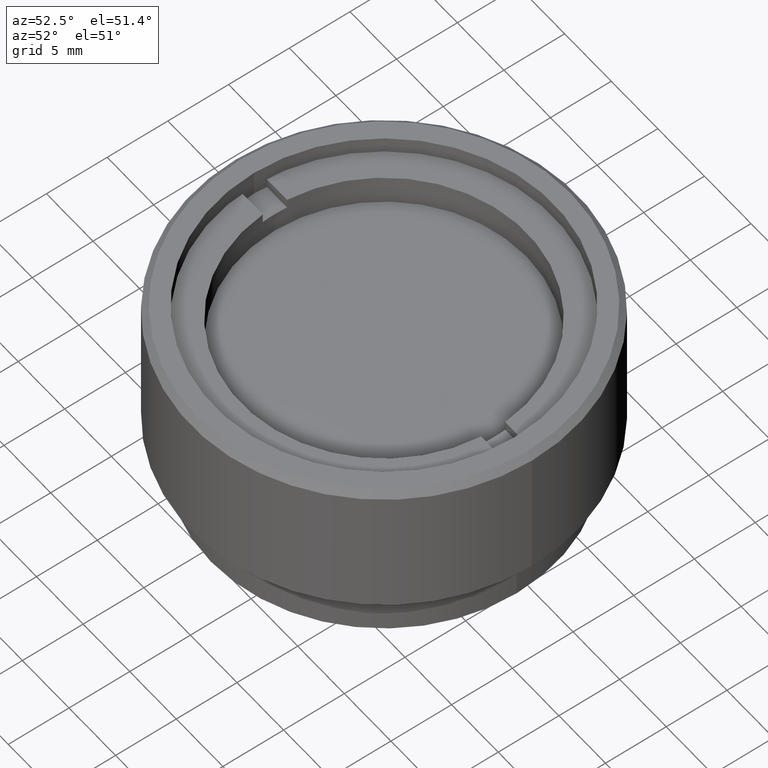
[diagram: clean part render]
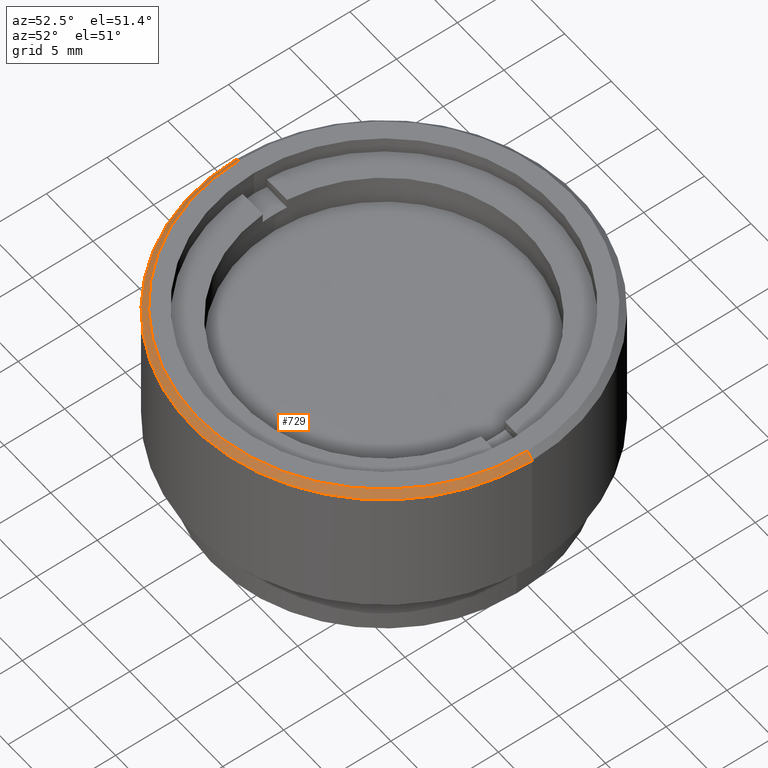
[diagram: same view with one face highlighted and labeled with its STEP entity id]
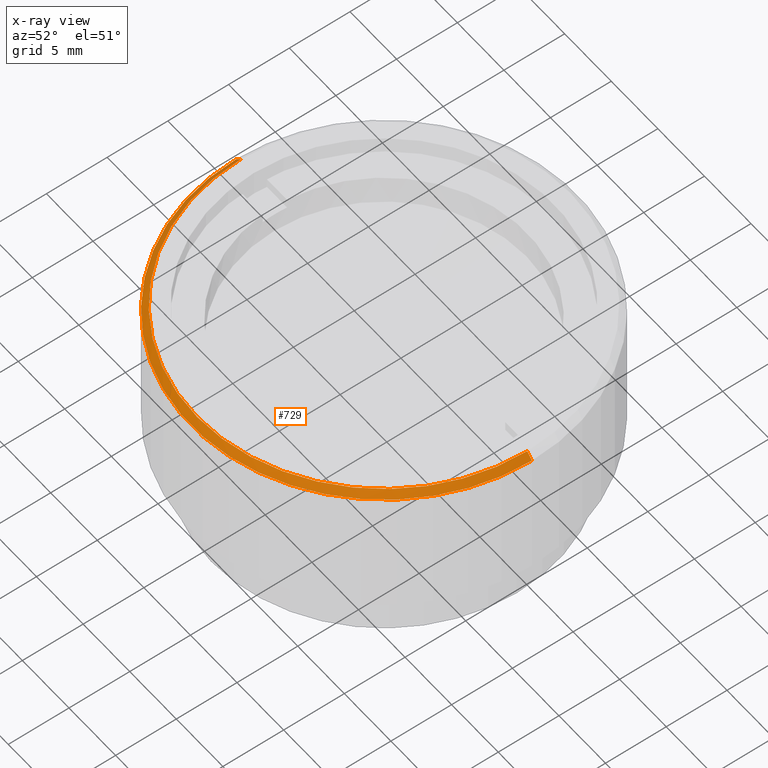
[diagram: x-ray of the same camera — body ghosted, the highlighted face saturated]
A machine part, auxiliary view. The second image highlights one B-rep face of the part: STEP entity #729.
The next image is the same camera in x-ray: the body ghosted, the highlighted face saturated — about 0% of this face is hidden behind the body in this view.
In plain terms, the highlighted conical surface has half-angle 45 deg.
Its self-contained STEP definition (entity closure, byte-faithful):
#64 = DIRECTION ( 'NONE',  ( 1.000000000000000000, 0.000000000000000000, 0.000000000000000000 ) ) ;
#80 = CARTESIAN_POINT ( 'NONE',  ( 15.87800000000000011, 1.944494187686167431E-15, 15.99999999999999645 ) ) ;
#144 = CARTESIAN_POINT ( 'NONE',  ( 0.000000000000000000, 0.000000000000000000, 16.50000000000000000 ) ) ;
#190 = EDGE_CURVE ( 'NONE', #1242, #274, #738, .T. ) ;
#239 = AXIS2_PLACEMENT_3D ( 'NONE', #662, #1177, #1622 ) ;
#249 = ORIENTED_EDGE ( 'NONE', *, *, #1009, .T. ) ;
#251 = CIRCLE ( 'NONE', #239, 15.37800000000000367 ) ;
#274 = VERTEX_POINT ( 'NONE', #334 ) ;
#323 = CARTESIAN_POINT ( 'NONE',  ( -15.37800000000000367, 0.000000000000000000, 16.50000000000000000 ) ) ;
#334 = CARTESIAN_POINT ( 'NONE',  ( -15.87800000000000011, 0.000000000000000000, 15.99999999999999645 ) ) ;
#372 = AXIS2_PLACEMENT_3D ( 'NONE', #980, #974, #64 ) ;
#395 = DIRECTION ( 'NONE',  ( 0.000000000000000000, 0.000000000000000000, -1.000000000000000000 ) ) ;
#463 = ORIENTED_EDGE ( 'NONE', *, *, #190, .F. ) ;
#464 = DIRECTION ( 'NONE',  ( -0.7071067811865425767, 0.000000000000000000, -0.7071067811865525687 ) ) ;
#540 = DIRECTION ( 'NONE',  ( -1.000000000000000000, 0.000000000000000000, 0.000000000000000000 ) ) ;
#662 = CARTESIAN_POINT ( 'NONE',  ( 0.000000000000000000, 0.000000000000000000, 16.50000000000000000 ) ) ;
#729 = ADVANCED_FACE ( 'NONE', ( #810 ), #1088, .T. ) ;
#732 = CARTESIAN_POINT ( 'NONE',  ( 15.37800000000000367, 1.913878017707484038E-15, 16.50000000000000000 ) ) ;
#738 = CIRCLE ( 'NONE', #372, 15.87800000000000011 ) ;
#810 = FACE_OUTER_BOUND ( 'NONE', #878, .T. ) ;
#875 = LINE ( 'NONE', #323, #1600 ) ;
#878 = EDGE_LOOP ( 'NONE', ( #1198, #1104, #249, #463 ) ) ;
#974 = DIRECTION ( 'NONE',  ( 0.000000000000000000, 0.000000000000000000, -1.000000000000000000 ) ) ;
#980 = CARTESIAN_POINT ( 'NONE',  ( 0.000000000000000000, 0.000000000000000000, 15.99999999999999645 ) ) ;
#1009 = EDGE_CURVE ( 'NONE', #1681, #274, #875, .T. ) ;
#1088 = CONICAL_SURFACE ( 'NONE', #1149, 15.37800000000000367, 0.7853981633974412846 ) ;
#1098 = LINE ( 'NONE', #1236, #1370 ) ;
#1104 = ORIENTED_EDGE ( 'NONE', *, *, #1128, .F. ) ;
#1128 = EDGE_CURVE ( 'NONE', #1681, #1473, #251, .T. ) ;
#1149 = AXIS2_PLACEMENT_3D ( 'NONE', #144, #395, #540 ) ;
#1177 = DIRECTION ( 'NONE',  ( 0.000000000000000000, 0.000000000000000000, 1.000000000000000000 ) ) ;
#1198 = ORIENTED_EDGE ( 'NONE', *, *, #1395, .F. ) ;
#1236 = CARTESIAN_POINT ( 'NONE',  ( 15.37800000000000367, 1.883261847728800251E-15, 16.50000000000000000 ) ) ;
#1242 = VERTEX_POINT ( 'NONE', #80 ) ;
#1318 = CARTESIAN_POINT ( 'NONE',  ( -15.37800000000000367, 0.000000000000000000, 16.50000000000000000 ) ) ;
#1359 = DIRECTION ( 'NONE',  ( 0.7071067811865425767, 8.659560562354873694E-17, -0.7071067811865525687 ) ) ;
#1370 = VECTOR ( 'NONE', #1359, 999.9999999999998863 ) ;
#1395 = EDGE_CURVE ( 'NONE', #1473, #1242, #1098, .T. ) ;
#1473 = VERTEX_POINT ( 'NONE', #732 ) ;
#1600 = VECTOR ( 'NONE', #464, 999.9999999999998863 ) ;
#1622 = DIRECTION ( 'NONE',  ( 1.000000000000000000, 0.000000000000000000, 0.000000000000000000 ) ) ;
#1681 = VERTEX_POINT ( 'NONE', #1318 ) ;